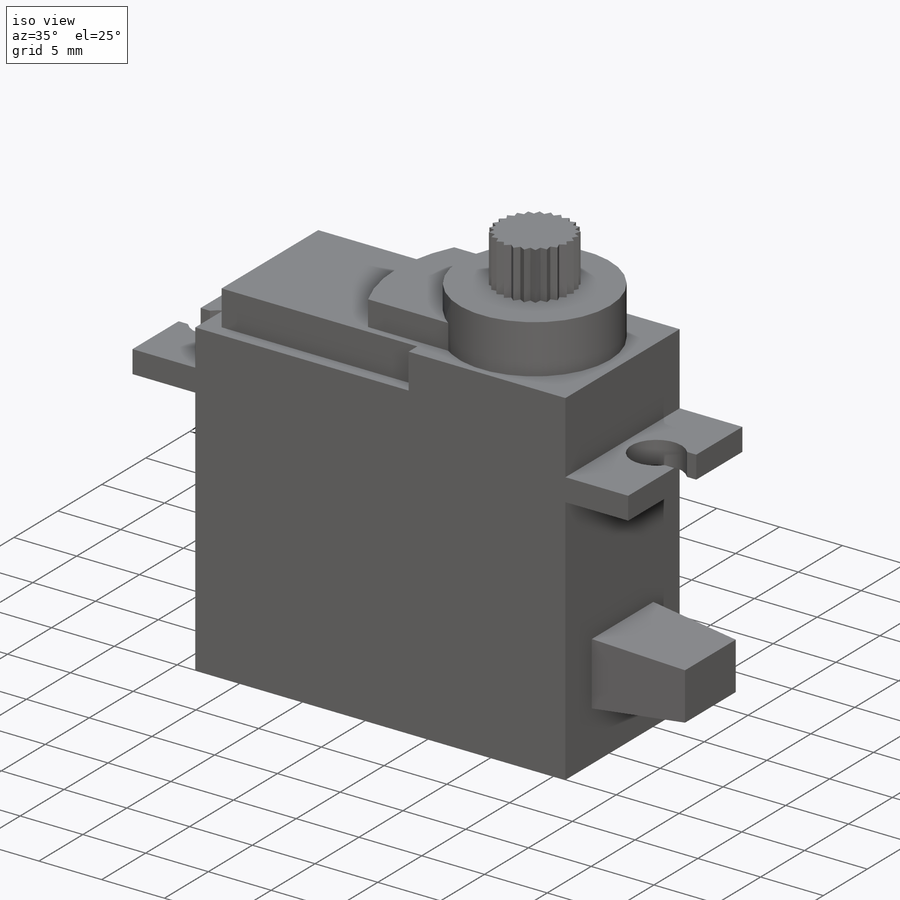
[diagram: iso view]
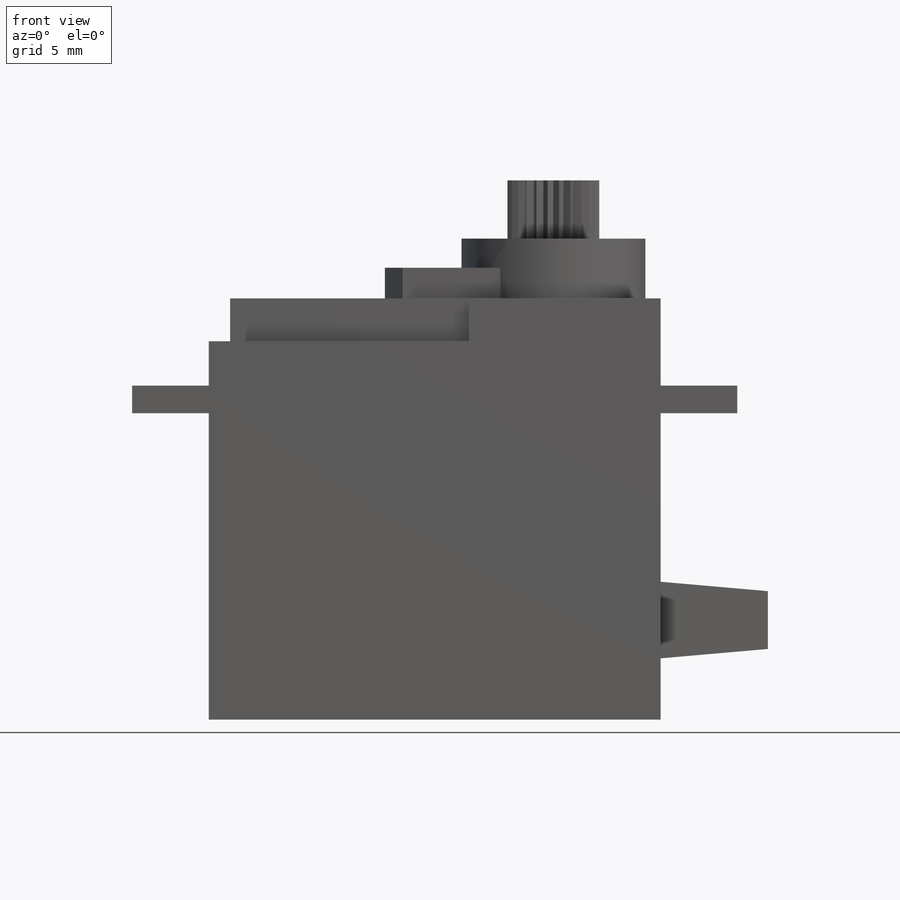
[diagram: front view]
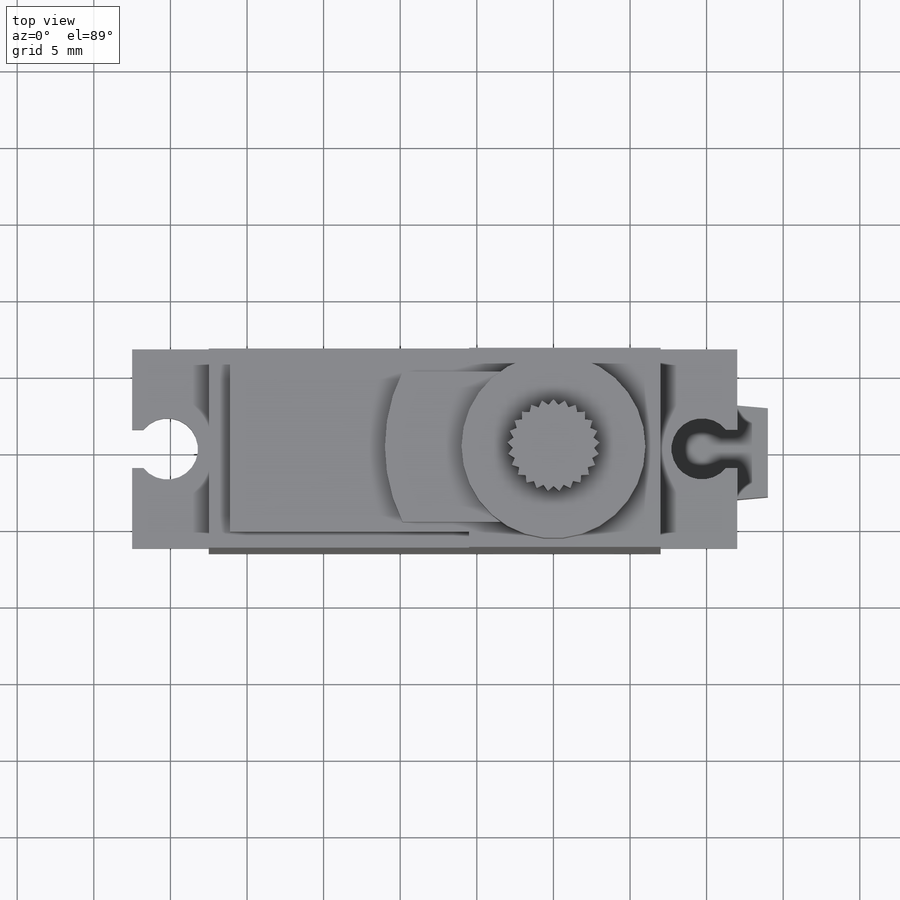
[diagram: top view]
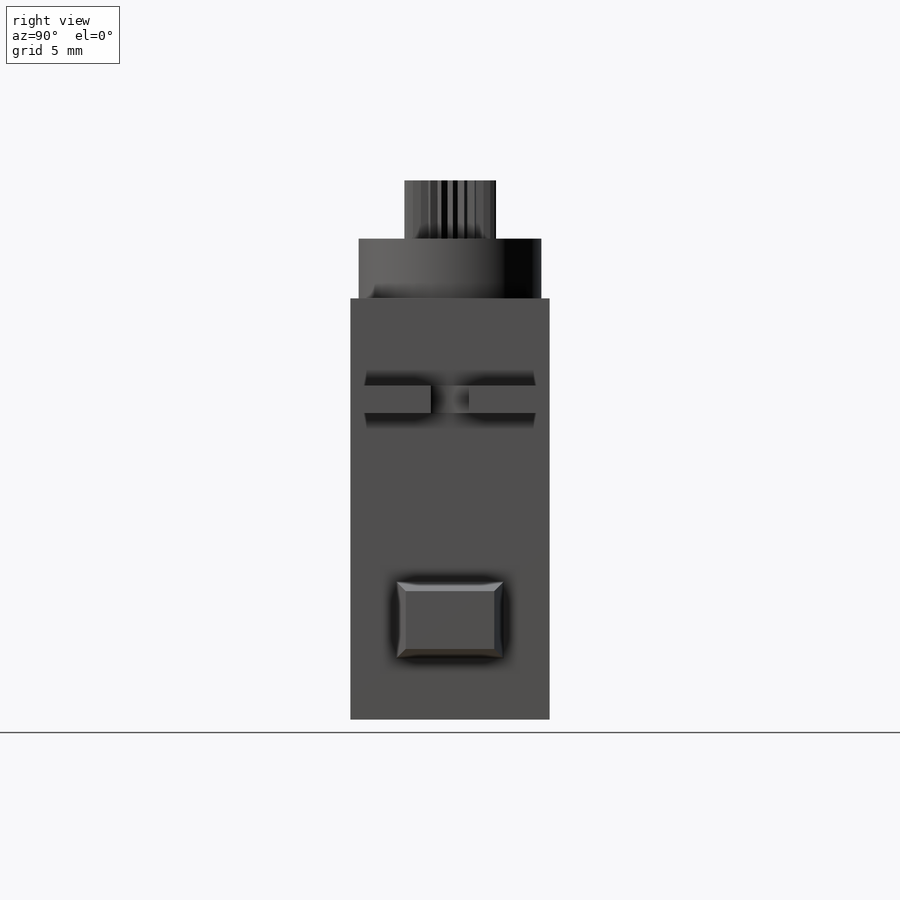
[diagram: right view]
SOLIDWORKS PART (.sldprt)
format: sldprt  version: not decoded by parser v0  size: 408,064 bytes
history: native  units: mm
features: sketch x12, extrude x5, plane x3, cut_extrude x3, hole x2, material x1 (+10 scaffold rows collapsed)
feature tree (36):
  scaffold x10  (default folders/planes/origin — collapsed)
  material  "Matériau <non spécifié>"
  plane  "Plan de face"
  plane  "Plan de dessus"
  plane  "Plan de droite"
  sketch  "Esquisse1"  dims[c1.D1=~67.58291mm c1.D2=~101.191709mm c2.D1=29.5mm c2.D2=27.5mm c2.D3=31.2mm c2.D4=1.8mm c2.D5=5.0mm c3.D4=20.0mm c3.D5=1.8mm c3.D6=5.0mm c4.D5=5.0mm c4.D6=5.0mm c4.D7=7.0mm]
  extrude  "Boss.-Extru.1"  Depth=6.5mm
  sketch  "Esquisse2"  dims[D1=1.0mm D2=1.0mm D3=17.0mm D4=1.4mm]
  cut_extrude  "Enlèv. mat.-Extru.1"  Depth=2.8mm
  sketch  "Esquisse3"  dims[D1=12.0mm]
  extrude  "Boss.-Extru.2"  Depth=3.9mm
  sketch  "Esquisse4"  dims[c1.D1=~1.234197mm c1.D2=~0.497872mm c2.D1=25.0]
  extrude  "Boss.-Extru.3"  Depth=3.8mm
  sketch  "Esquisse5"  dims[c1.D1=22.0mm c1.D2=~34.769943mm c2.D1=13.0mm c2.D2=9.8mm]
  extrude  "Boss.-Extru.4"  Depth=2mm
  hole  "Diamètre du perçage Ø4.0 (4)1"  Diameter=4mm Depth=21.8mm
  sketch  "Esquisse7"  dims[D1=2.3mm]
  sketch  "Esquisse6"  dims[hole-wizard template sketch: 59 standard entries collapsed; hole parameters kept: c18.Diamètre du perçage jusqu'au prochain=4.0mm c18.Profondeur du perçage jusqu'au prochain=21.8mm]
  hole  "Diamètre du perçage Ø4.0 (4)2"  Diameter=4mm Depth=21.8mm
  sketch  "Esquisse9"  dims[D1=2.3mm]
  sketch  "Esquisse8"  dims[hole-wizard template sketch: 59 standard entries collapsed; hole parameters kept: c18.Diamètre du perçage jusqu'au prochain=4.0mm c18.Profondeur du perçage jusqu'au prochain=21.8mm]
  sketch  "Esquisse10"  dims[c1.D1=~3.44286mm c1.D2=~8.44056mm c2.D1=9.0mm c2.D2=5.0mm c2.D3=7.0mm c2.D4=3.5mm]
  extrude  "Boss.-Extru.5"  Depth=7mm
  sketch  "Esquisse11"  dims[c1.D1=2.5mm c1.D2=2.0mm c2.D1=1.25mm c2.D2=2.5mm]
  cut_extrude  "Enlèv. mat.-Extru.2"  [1 undecoded]
  sketch  "Esquisse12"  dims[c1.D1=2.5mm c1.D2=2.0mm c2.D1=2.5mm c2.D2=1.25mm]
  cut_extrude  "Enlèv. mat.-Extru.3"  [1 undecoded]
decode coverage: 20 of 22 modeling features carry decoded parameters
note: ~ marks probable driven/reference dimensions
note: 2 parameter values undecoded
note: suppression state not decoded; provenance and decode notes live in map.json
